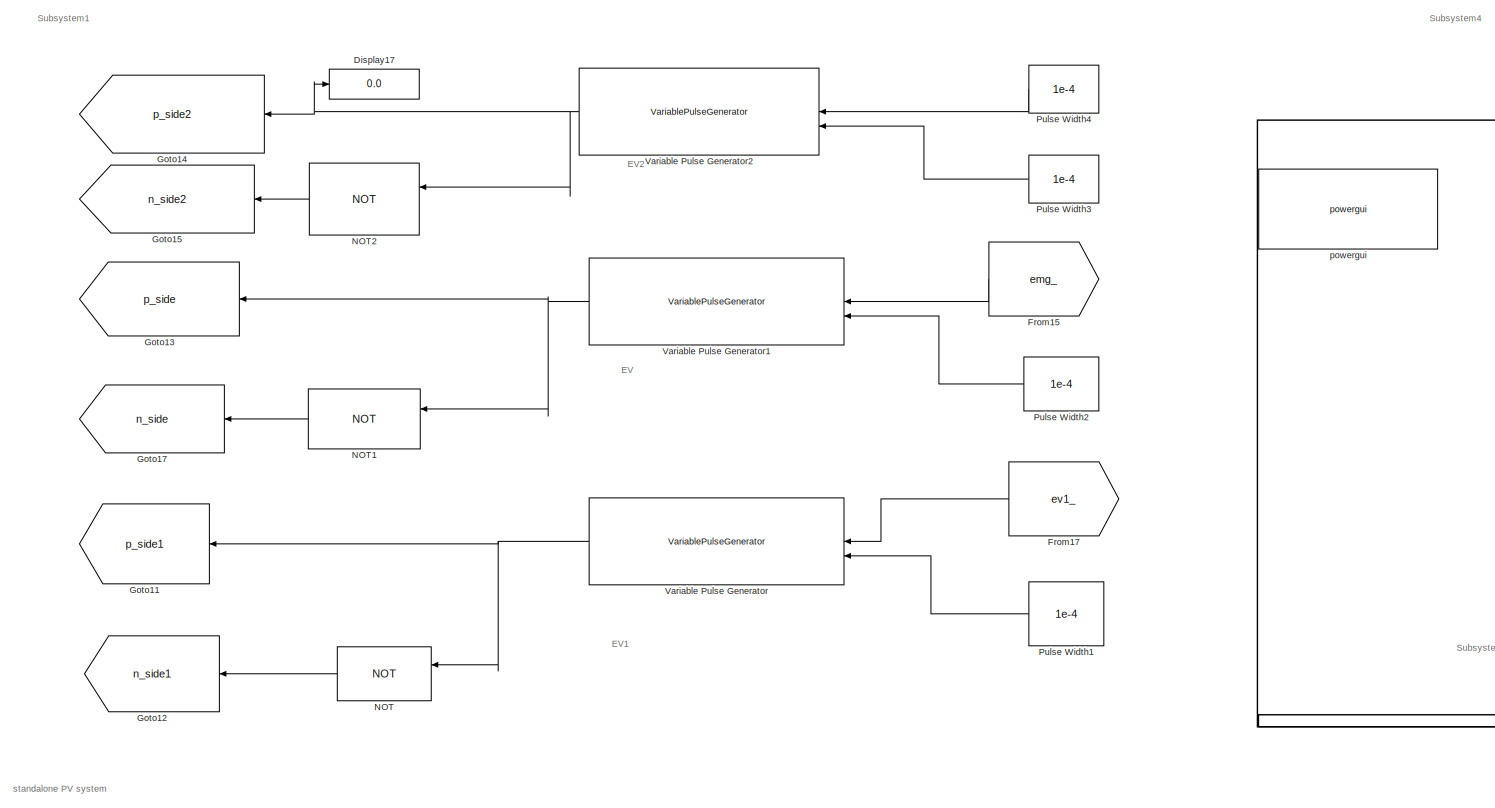
[diagram: root canvas - part 1/11, top left region]
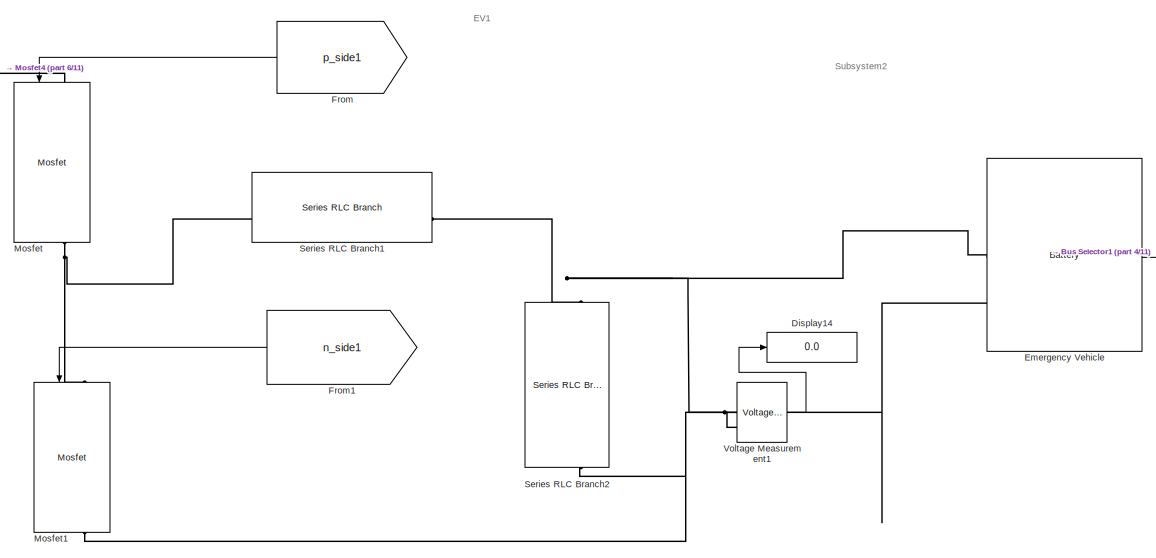
[diagram: root canvas - part 2/11, top center region]
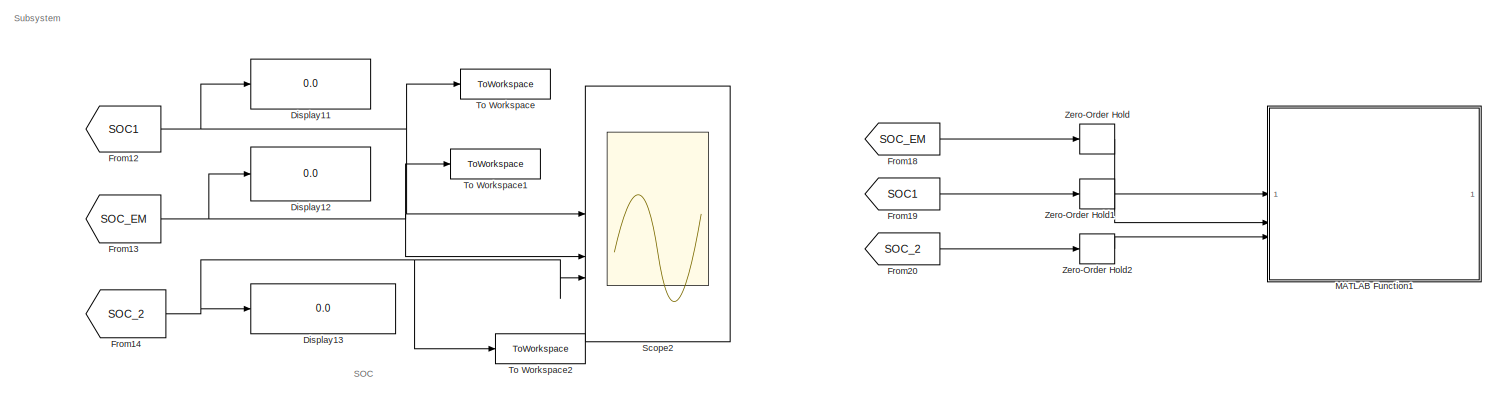
[diagram: root canvas - part 3/11, top right region]
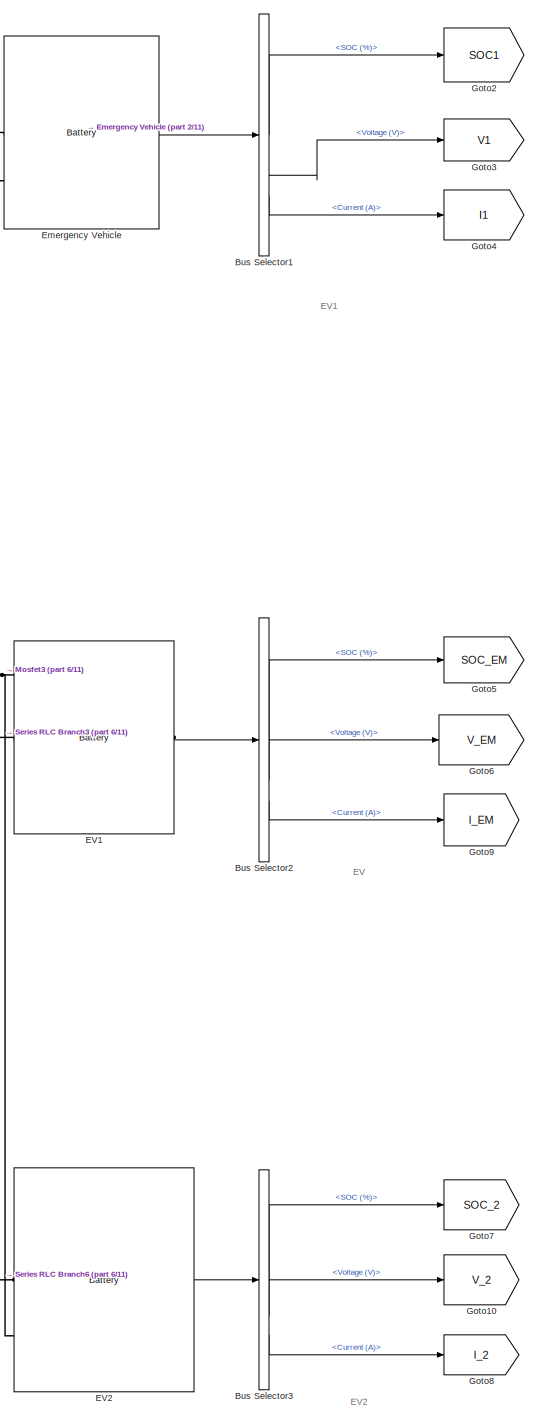
[diagram: root canvas - part 4/11, central region]
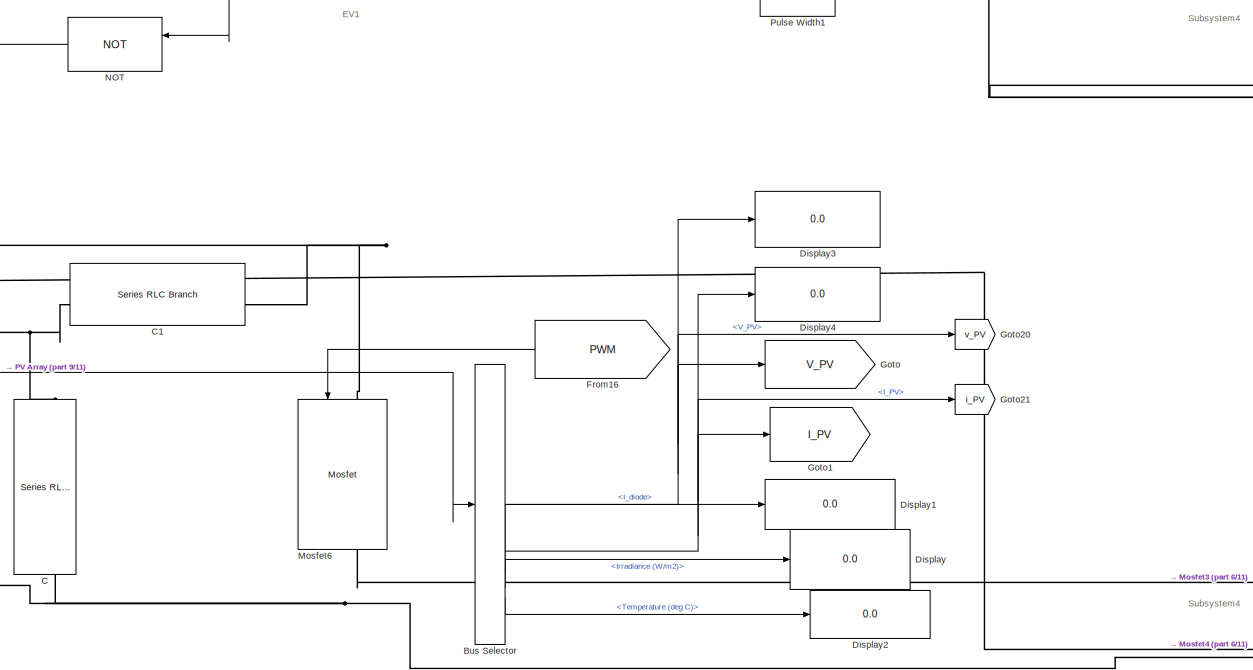
[diagram: root canvas - part 5/11, middle left region]
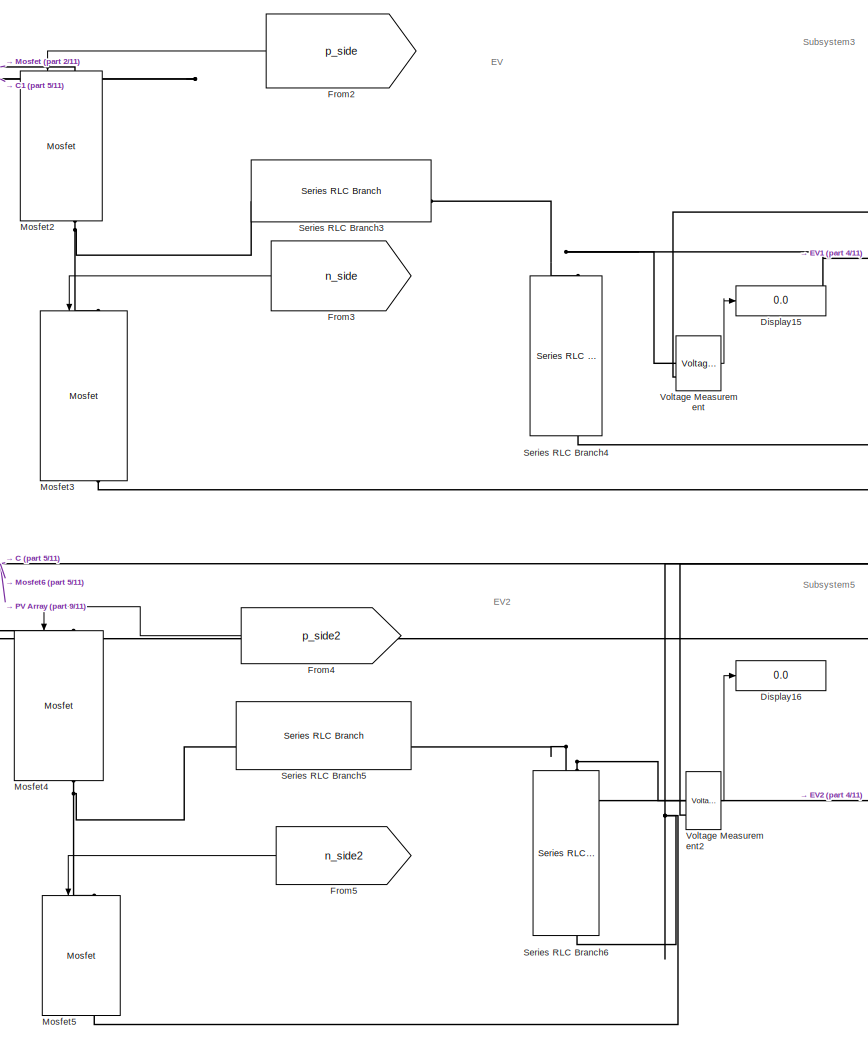
[diagram: root canvas - part 6/11, central region]
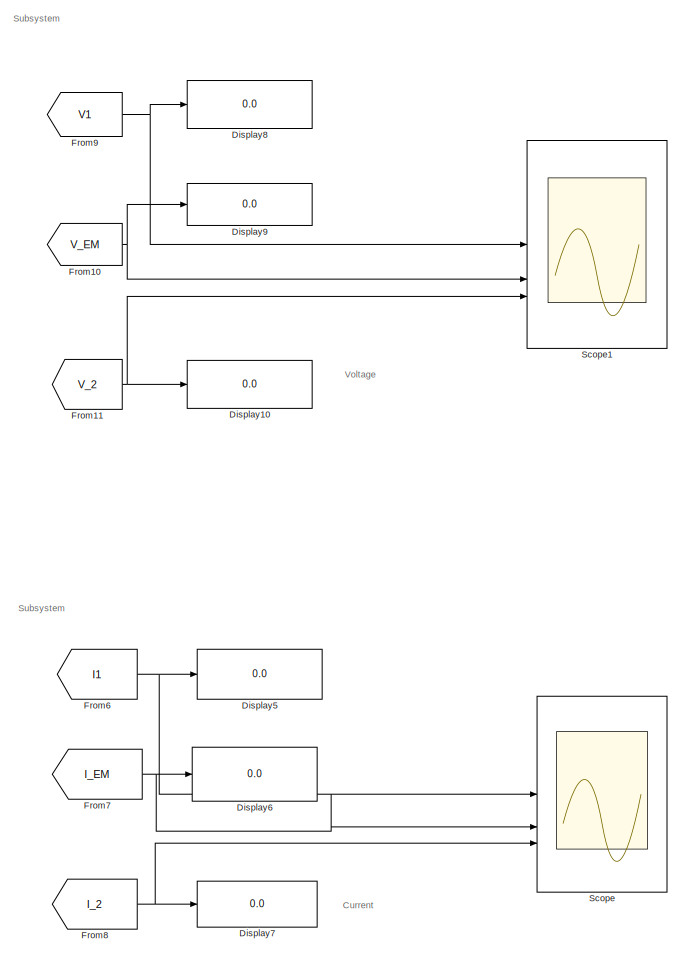
[diagram: root canvas - part 7/11, middle right region]
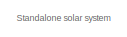
[diagram: root canvas - part 8/11, middle left region]
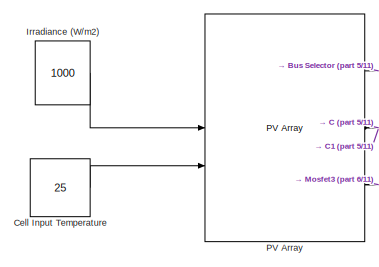
[diagram: root canvas - part 9/11, middle left region]
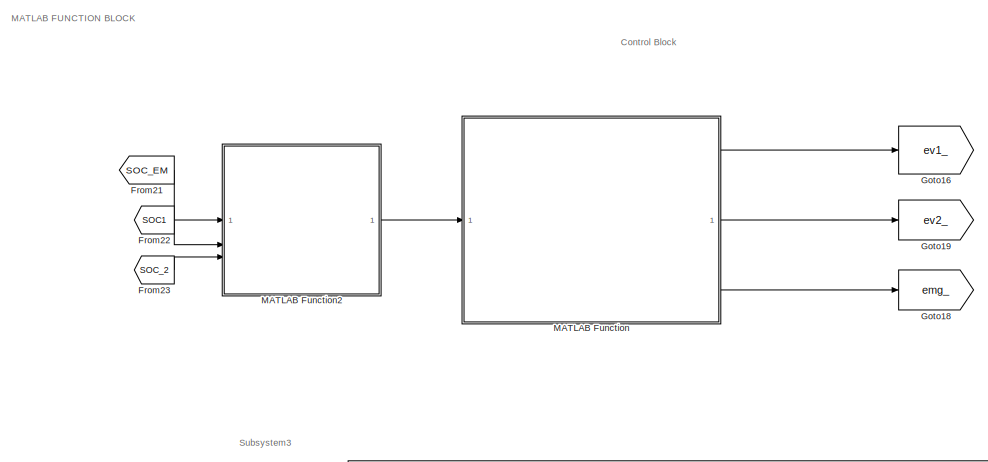
[diagram: root canvas - part 10/11, bottom left region]
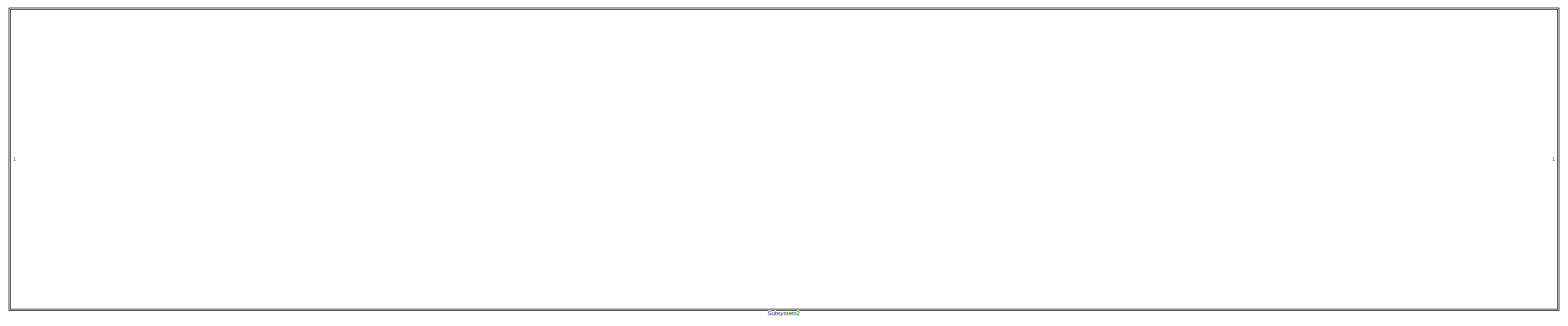
[diagram: root canvas - part 11/11, bottom center region]
MODEL slx_cc8a44b88fba
KIND model
CONFIG AbsTol = auto
CONFIG EnableMultiTasking = off
CONFIG FixedStep = auto
CONFIG MaxStep = auto
CONFIG MinStep = auto
CONFIG RelTol = 1e-3
CONFIG SampleTimeConstraint = Unconstrained
CONFIG SolverName = VariableStepAuto
CONFIG StartTime = 0.0
CONFIG StopTime = 5
BLOCK [BusSelector] Bus Selector
  OutputSignals = V_PV,I_PV,I_diode,Irradiance (W/m2),Temperature (deg C)
BLOCK [BusSelector] Bus Selector1
  OutputSignals = SOC (%),Voltage (V),Current (A)
BLOCK [BusSelector] Bus Selector2
  OutputSignals = SOC (%),Voltage (V),Current (A)
BLOCK [BusSelector] Bus Selector3
  OutputSignals = SOC (%),Voltage (V),Current (A)
BLOCK [Reference] C  REF=spsSeriesRLCBranchLib/Series RLC Branch
  LibrarySourceBlock = sps_lib/Passives/Series RLC Branch
  NameLocation = left
  SourceBlock = spsSeriesRLCBranchLib/Series RLC Branch
  SourceType = Series RLC Branch
BLOCK [Reference] C1  REF=spsSeriesRLCBranchLib/Series RLC Branch
  LibrarySourceBlock = sps_lib/Passives/Series RLC Branch
  NameLocation = top
  SourceBlock = spsSeriesRLCBranchLib/Series RLC Branch
  SourceType = Series RLC Branch
BLOCK [Constant] Cell Input Temperature
  Value = 25
BLOCK [Display] Display
  Decimation = 1
BLOCK [Display] Display1
  Decimation = 1
BLOCK [Display] Display10
  Decimation = 1
BLOCK [Display] Display11
  Decimation = 1
BLOCK [Display] Display12
  Decimation = 1
BLOCK [Display] Display13
  Decimation = 1
BLOCK [Display] Display14
  Decimation = 1
BLOCK [Display] Display15
  Decimation = 1
BLOCK [Display] Display16
  Decimation = 1
BLOCK [Display] Display17
  Decimation = 1
BLOCK [Display] Display2
  Decimation = 1
BLOCK [Display] Display3
  Decimation = 1
BLOCK [Display] Display4
  Decimation = 1
BLOCK [Display] Display5
  Decimation = 1
BLOCK [Display] Display6
  Decimation = 1
BLOCK [Display] Display7
  Decimation = 1
BLOCK [Display] Display8
  Decimation = 1
BLOCK [Display] Display9
  Decimation = 1
BLOCK [Reference] EV1  REF=spsBatteryLib/Battery
  LibrarySourceBlock = sps_lib/Sources/Battery
  NameLocation = top
  SourceBlock = spsBatteryLib/Battery
  SourceType = Battery
BLOCK [Reference] EV2  REF=spsBatteryLib/Battery
  LibrarySourceBlock = sps_lib/Sources/Battery
  SourceBlock = spsBatteryLib/Battery
  SourceType = Battery
BLOCK [Reference] Emergency Vehicle  REF=spsBatteryLib/Battery
  LibrarySourceBlock = sps_lib/Sources/Battery
  NameLocation = top
  SourceBlock = spsBatteryLib/Battery
  SourceType = Battery
BLOCK [From] From
  GotoTag = p_side1
  IconDisplay = Signal name
  NameLocation = top
  TagVisibility = global
BLOCK [From] From1
  GotoTag = n_side1
  IconDisplay = Signal name
  NameLocation = top
  TagVisibility = global
BLOCK [From] From10
  GotoTag = V_EM
  TagVisibility = global
BLOCK [From] From11
  GotoTag = V_2
  TagVisibility = global
BLOCK [From] From12
  GotoTag = SOC1
  TagVisibility = global
BLOCK [From] From13
  GotoTag = SOC_EM
  TagVisibility = global
BLOCK [From] From14
  GotoTag = SOC_2
  TagVisibility = global
BLOCK [From] From15
  GotoTag = emg_
  IconDisplay = Signal name
  NameLocation = top
  TagVisibility = global
BLOCK [From] From16
  GotoTag = PWM
  IconDisplay = Signal name
  NameLocation = top
  TagVisibility = global
BLOCK [From] From17
  GotoTag = ev1_
  IconDisplay = Signal name
  NameLocation = top
  TagVisibility = global
BLOCK [From] From18
  GotoTag = SOC_EM
  TagVisibility = global
BLOCK [From] From19
  GotoTag = SOC1
  TagVisibility = global
BLOCK [From] From2
  GotoTag = p_side
  IconDisplay = Signal name
  NameLocation = top
  TagVisibility = global
BLOCK [From] From20
  GotoTag = SOC_2
  TagVisibility = global
BLOCK [From] From21
  GotoTag = SOC_EM
  TagVisibility = global
BLOCK [From] From22
  GotoTag = SOC1
  TagVisibility = global
BLOCK [From] From23
  GotoTag = SOC_2
  TagVisibility = global
BLOCK [From] From3
  GotoTag = n_side
  IconDisplay = Signal name
  NameLocation = top
  TagVisibility = global
BLOCK [From] From4
  GotoTag = p_side2
  IconDisplay = Signal name
  NameLocation = top
  TagVisibility = global
BLOCK [From] From5
  GotoTag = n_side2
  IconDisplay = Signal name
  NameLocation = top
  TagVisibility = global
BLOCK [From] From6
  GotoTag = I1
  TagVisibility = global
BLOCK [From] From7
  GotoTag = I_EM
  TagVisibility = global
BLOCK [From] From8
  GotoTag = I_2
  TagVisibility = global
BLOCK [From] From9
  GotoTag = V1
  TagVisibility = global
BLOCK [Goto] Goto
  GotoTag = V_PV
  TagVisibility = global
BLOCK [Goto] Goto1
  GotoTag = I_PV
  TagVisibility = global
BLOCK [Goto] Goto10
  GotoTag = V_2
  TagVisibility = global
BLOCK [Goto] Goto11
  GotoTag = p_side1
  IconDisplay = Signal name
  NameLocation = top
  TagVisibility = global
BLOCK [Goto] Goto12
  GotoTag = n_side1
  IconDisplay = Signal name
  NameLocation = top
  TagVisibility = global
BLOCK [Goto] Goto13
  GotoTag = p_side
  NameLocation = top
  TagVisibility = global
BLOCK [Goto] Goto14
  GotoTag = p_side2
  NameLocation = top
  TagVisibility = global
BLOCK [Goto] Goto15
  GotoTag = n_side2
  NameLocation = top
  TagVisibility = global
BLOCK [Goto] Goto16
  GotoTag = ev1_
  TagVisibility = global
BLOCK [Goto] Goto17
  GotoTag = n_side
  NameLocation = top
  TagVisibility = global
BLOCK [Goto] Goto18
  GotoTag = emg_
  TagVisibility = global
BLOCK [Goto] Goto19
  GotoTag = ev2_
  TagVisibility = global
BLOCK [Goto] Goto2
  GotoTag = SOC1
  TagVisibility = global
BLOCK [Goto] Goto20
  GotoTag = v_PV
  TagVisibility = global
BLOCK [Goto] Goto21
  GotoTag = i_PV
  TagVisibility = global
BLOCK [Goto] Goto3
  GotoTag = V1
  TagVisibility = global
BLOCK [Goto] Goto4
  GotoTag = I1
  TagVisibility = global
BLOCK [Goto] Goto5
  GotoTag = SOC_EM
  TagVisibility = global
BLOCK [Goto] Goto6
  GotoTag = V_EM
  TagVisibility = global
BLOCK [Goto] Goto7
  GotoTag = SOC_2
  TagVisibility = global
BLOCK [Goto] Goto8
  GotoTag = I_2
  TagVisibility = global
BLOCK [Goto] Goto9
  GotoTag = I_EM
  TagVisibility = global
BLOCK [Constant] Irradiance (W//m2)
  Value = 1000
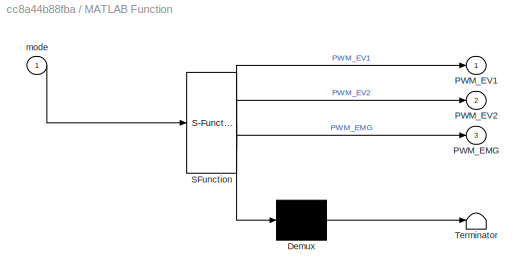
BLOCK [SubSystem] MATLAB Function
  ErrorFcn = Stateflow.Translate.translate
  PermitHierarchicalResolution = ExplicitOnly
  SFBlockType = MATLAB Function
  TreatAsAtomicUnit = on
BLOCK [Demux] MATLAB Function/ Demux 
  Outputs = 1
BLOCK [S-Function] MATLAB Function/ SFunction 
  EnableBusSupport = off
  FunctionName = sf_sfun
  PortCounts = [1 4]
  SFcnIsStateOwnerBlock = off
  SFunctionDeploymentMode = off
  Tag = Stateflow S-Function 1
BLOCK [Terminator] MATLAB Function/ Terminator 
BLOCK [Outport] MATLAB Function/PWM_EMG
  Port = 3
BLOCK [Outport] MATLAB Function/PWM_EV1
BLOCK [Outport] MATLAB Function/PWM_EV2
  Port = 2
BLOCK [Inport] MATLAB Function/mode
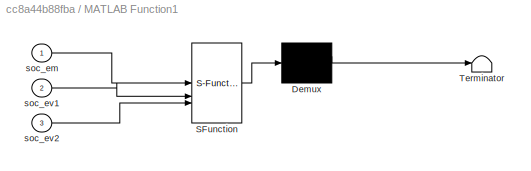
BLOCK [SubSystem] MATLAB Function1
  ErrorFcn = Stateflow.Translate.translate
  PermitHierarchicalResolution = ExplicitOnly
  SFBlockType = MATLAB Function
  TreatAsAtomicUnit = on
BLOCK [Demux] MATLAB Function1/ Demux 
  Outputs = 1
BLOCK [S-Function] MATLAB Function1/ SFunction 
  EnableBusSupport = off
  FunctionName = sf_sfun
  PortCounts = [3 1]
  SFcnIsStateOwnerBlock = off
  SFunctionDeploymentMode = off
  Tag = Stateflow S-Function 3
BLOCK [Terminator] MATLAB Function1/ Terminator 
BLOCK [Inport] MATLAB Function1/soc_em
BLOCK [Inport] MATLAB Function1/soc_ev1
  Port = 2
BLOCK [Inport] MATLAB Function1/soc_ev2
  Port = 3
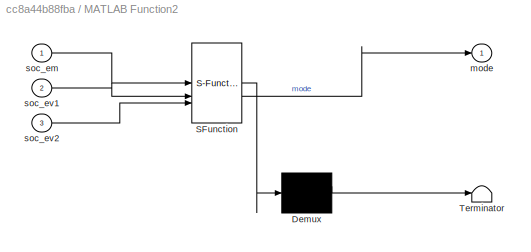
BLOCK [SubSystem] MATLAB Function2
  ErrorFcn = Stateflow.Translate.translate
  PermitHierarchicalResolution = ExplicitOnly
  SFBlockType = MATLAB Function
  TreatAsAtomicUnit = on
BLOCK [Demux] MATLAB Function2/ Demux 
  Outputs = 1
BLOCK [S-Function] MATLAB Function2/ SFunction 
  EnableBusSupport = off
  FunctionName = sf_sfun
  PortCounts = [3 2]
  SFcnIsStateOwnerBlock = off
  SFunctionDeploymentMode = off
  Tag = Stateflow S-Function 4
BLOCK [Terminator] MATLAB Function2/ Terminator 
BLOCK [Outport] MATLAB Function2/mode
BLOCK [Inport] MATLAB Function2/soc_em
BLOCK [Inport] MATLAB Function2/soc_ev1
  Port = 2
BLOCK [Inport] MATLAB Function2/soc_ev2
  Port = 3
BLOCK [Reference] Mosfet  REF=spsMosfetLib/Mosfet
  LibrarySourceBlock = sps_lib/Power Electronics/Mosfet
  NameLocation = left
  SourceBlock = spsMosfetLib/Mosfet
  SourceType = Mosfet
BLOCK [Reference] Mosfet1  REF=spsMosfetLib/Mosfet
  LibrarySourceBlock = sps_lib/Power Electronics/Mosfet
  NameLocation = left
  SourceBlock = spsMosfetLib/Mosfet
  SourceType = Mosfet
BLOCK [Reference] Mosfet2  REF=spsMosfetLib/Mosfet
  LibrarySourceBlock = sps_lib/Power Electronics/Mosfet
  NameLocation = left
  SourceBlock = spsMosfetLib/Mosfet
  SourceType = Mosfet
BLOCK [Reference] Mosfet3  REF=spsMosfetLib/Mosfet
  LibrarySourceBlock = sps_lib/Power Electronics/Mosfet
  NameLocation = left
  SourceBlock = spsMosfetLib/Mosfet
  SourceType = Mosfet
BLOCK [Reference] Mosfet4  REF=spsMosfetLib/Mosfet
  LibrarySourceBlock = sps_lib/Power Electronics/Mosfet
  NameLocation = left
  SourceBlock = spsMosfetLib/Mosfet
  SourceType = Mosfet
BLOCK [Reference] Mosfet5  REF=spsMosfetLib/Mosfet
  LibrarySourceBlock = sps_lib/Power Electronics/Mosfet
  NameLocation = left
  SourceBlock = spsMosfetLib/Mosfet
  SourceType = Mosfet
BLOCK [Reference] Mosfet6  REF=spsMosfetLib/Mosfet
  LibrarySourceBlock = sps_lib/Power Electronics/Mosfet
  NameLocation = left
  SourceBlock = spsMosfetLib/Mosfet
  SourceType = Mosfet
BLOCK [Logic] NOT
  AllPortsSameDT = off
  IconShape = distinctive
  NameLocation = top
  Operator = NOT
  OutDataTypeStr = boolean
BLOCK [Logic] NOT1
  AllPortsSameDT = off
  IconShape = distinctive
  NameLocation = top
  Operator = NOT
  OutDataTypeStr = boolean
BLOCK [Logic] NOT2
  AllPortsSameDT = off
  IconShape = distinctive
  NameLocation = top
  Operator = NOT
  OutDataTypeStr = boolean
BLOCK [Reference] PV  Array  REF=spsPVArrayLib/PV Array
  LibrarySourceBlock = sps_lib/Sources/PV Array
  SourceBlock = spsPVArrayLib/PV Array
  SourceType = PV array
BLOCK [Constant] Pulse Width1
  NameLocation = top
  Value = 1e-4
BLOCK [Constant] Pulse Width2
  NameLocation = top
  Value = 1e-4
BLOCK [Constant] Pulse Width3
  NameLocation = top
  Value = 1e-4
BLOCK [Constant] Pulse Width4
  NameLocation = top
  Value = 1e-4
BLOCK [Scope] Scope
  ActiveDisplayYMaximum = 55.444981382819826
  ActiveDisplayYMinimum = -6.4724154503791311
  Floating = off
  GraphicalSettings = {"AxesScalingProperties":{"AlignXAxis":"Center","AlignYAxis":"Center","AutoScaleXAxisLimits":false,"AxesScaling":"Manual","AxesScalingNumUpdates":10,"ExpandOnly":true,"ScaleAxesLimitsAtStop":false,"XAxisDataRange":100,"YAxisDataRange":80},"DisplayProperties":{"ColorOrder":["auto","auto","auto","auto","auto","auto","auto","auto","auto","auto","auto","auto","auto","auto","auto","auto","auto","auto",...<+2902ch>
  LayoutDimensionsString = [3,1]
  MultipleDisplayCache = [{"MaxYLimMag":5.0436506768116729,"MaxYLimReal":55.444981382819826,"MinYLimMag":0,"MinYLimReal":-6.4724154503791311,"PlotAsMagnitudePhase":false,"ShowGrid":true,"ShowLegend":true,"Title":"%<SignalLabel>","YLabel":""},{"MaxYLimMag":34.685331645379776,"MaxYLimReal":3.8576057857501582,"MinYLimMag":0,"MinYLimReal":-34.685331645379776,"PlotAsMagnitudePhase":false,"ShowGrid":true,"ShowLegend":true,"Titl...<+249ch>
  NumInputPorts = 3
  ScopeFrameLocation = window
  ShowLegend = on
  WasSavedAsWebScope = on
  WindowPosition = [0.000000,36.000000,1920.000000,1009.000000,]
BLOCK [Scope] Scope1
  ActiveDisplayYMaximum = 302.91358092238158
  ActiveDisplayYMinimum = -33.657064546931281
  DataLoggingVariableName = ScopeData1
  Floating = off
  GraphicalSettings = {"Style":{"BackgroundColor":[0.12941176470588237,0.12941176470588237,0.12941176470588237],"AxesColor":[0.07058823529411765,0.07058823529411765,0.07058823529411765],"LabelsColor":[0.8509803921568627,0.8509803921568627,0.8509803921568627],"PreserveColors":false,"Visible":[true,true,true],"LineStyle":["-","-","-"],"LineWidth":[1.5,1.5,1.5],"BarWidth":[0.9,0.9,0.9],"LineColor":["auto","auto","auto"],"...<+2883ch>
  LayoutDimensionsString = [3,1]
  MultipleDisplayCache = [{"MaxYLimMag":302.91358092238158,"MaxYLimReal":302.91358092238158,"MinYLimMag":0,"MinYLimReal":-33.657064546931281,"PlotAsMagnitudePhase":false,"ShowGrid":true,"ShowLegend":true,"Title":"%<SignalLabel>","YLabel":""},{"MaxYLimMag":301.61956123975261,"MaxYLimReal":301.61956123975261,"MinYLimMag":0,"MinYLimReal":-33.513284582194729,"PlotAsMagnitudePhase":false,"ShowGrid":true,"ShowLegend":true,"Titl...<+247ch>
  NumInputPorts = 3
  ScopeFrameLocation = window
  ShowLegend = on
  WasSavedAsWebScope = on
  WindowPosition = [0.000000,36.000000,1920.000000,1009.000000,]
BLOCK [Scope] Scope2
  ActiveDisplayYMaximum = 51.68343264048265
  ActiveDisplayYMinimum = 51.5865917372177
  DataLoggingVariableName = ScopeData2
  Floating = off
  GraphicalSettings = {"AxesScalingProperties":{"AlignXAxis":"Center","AlignYAxis":"Center","AutoScaleXAxisLimits":false,"AxesScaling":"Manual","AxesScalingNumUpdates":10,"ExpandOnly":true,"ScaleAxesLimitsAtStop":false,"XAxisDataRange":100,"YAxisDataRange":80},"DisplayProperties":{"ColorOrder":["auto","auto","auto","auto","auto","auto","auto","auto","auto","auto","auto","auto","auto","auto","auto","auto","auto","auto",...<+2942ch>
  LayoutDimensionsString = [3,1]
  MultipleDisplayCache = [{"MaxYLimMag":51.644192502302651,"MaxYLimReal":51.68343264048265,"MinYLimMag":51.643273281982829,"MinYLimReal":51.5865917372177,"PlotAsMagnitudePhase":false,"ShowGrid":true,"ShowLegend":true,"Title":"%<SignalLabel>","YLabel":""},{"MaxYLimMag":32.333001570825431,"MaxYLimReal":32.333001570825431,"MinYLimMag":32.298267394759208,"MinYLimReal":32.298267394759208,"PlotAsMagnitudePhase":false,"ShowGrid"...<+293ch>
  NumInputPorts = 3
  ScopeFrameLocation = window
  ShowLegend = on
  WasSavedAsWebScope = on
  WindowPosition = [0.000000,36.000000,1920.000000,1009.000000,]
BLOCK [Reference] Series RLC Branch1  REF=spsSeriesRLCBranchLib/Series RLC Branch
  LibrarySourceBlock = sps_lib/Passives/Series RLC Branch
  SourceBlock = spsSeriesRLCBranchLib/Series RLC Branch
  SourceType = Series RLC Branch
BLOCK [Reference] Series RLC Branch2  REF=spsSeriesRLCBranchLib/Series RLC Branch
  LibrarySourceBlock = sps_lib/Passives/Series RLC Branch
  NameLocation = left
  SourceBlock = spsSeriesRLCBranchLib/Series RLC Branch
  SourceType = Series RLC Branch
BLOCK [Reference] Series RLC Branch3  REF=spsSeriesRLCBranchLib/Series RLC Branch
  LibrarySourceBlock = sps_lib/Passives/Series RLC Branch
  SourceBlock = spsSeriesRLCBranchLib/Series RLC Branch
  SourceType = Series RLC Branch
BLOCK [Reference] Series RLC Branch4  REF=spsSeriesRLCBranchLib/Series RLC Branch
  LibrarySourceBlock = sps_lib/Passives/Series RLC Branch
  NameLocation = left
  SourceBlock = spsSeriesRLCBranchLib/Series RLC Branch
  SourceType = Series RLC Branch
BLOCK [Reference] Series RLC Branch5  REF=spsSeriesRLCBranchLib/Series RLC Branch
  LibrarySourceBlock = sps_lib/Passives/Series RLC Branch
  SourceBlock = spsSeriesRLCBranchLib/Series RLC Branch
  SourceType = Series RLC Branch
BLOCK [Reference] Series RLC Branch6  REF=spsSeriesRLCBranchLib/Series RLC Branch
  LibrarySourceBlock = sps_lib/Passives/Series RLC Branch
  NameLocation = left
  SourceBlock = spsSeriesRLCBranchLib/Series RLC Branch
  SourceType = Series RLC Branch
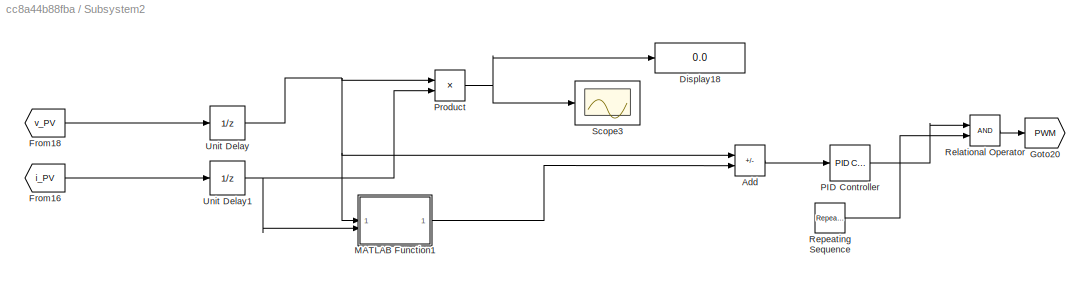
BLOCK [SubSystem] Subsystem2
BLOCK [Sum] Subsystem2/Add
  IconShape = rectangular
  Inputs = +-
BLOCK [Display] Subsystem2/Display18
  Decimation = 1
BLOCK [From] Subsystem2/From16
  GotoTag = i_PV
  TagVisibility = global
BLOCK [From] Subsystem2/From18
  GotoTag = v_PV
  TagVisibility = global
BLOCK [Goto] Subsystem2/Goto20
  GotoTag = PWM
  TagVisibility = global
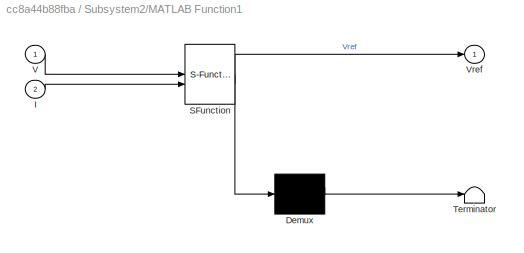
BLOCK [SubSystem] Subsystem2/MATLAB Function1
  ErrorFcn = Stateflow.Translate.translate
  PermitHierarchicalResolution = ExplicitOnly
  SFBlockType = MATLAB Function
  TreatAsAtomicUnit = on
BLOCK [Demux] Subsystem2/MATLAB Function1/ Demux 
  Outputs = 1
BLOCK [S-Function] Subsystem2/MATLAB Function1/ SFunction 
  EnableBusSupport = off
  FunctionName = sf_sfun
  PortCounts = [2 2]
  SFcnIsStateOwnerBlock = off
  SFunctionDeploymentMode = off
  Tag = Stateflow S-Function 2
BLOCK [Terminator] Subsystem2/MATLAB Function1/ Terminator 
BLOCK [Inport] Subsystem2/MATLAB Function1/I
  Port = 2
BLOCK [Inport] Subsystem2/MATLAB Function1/V
BLOCK [Outport] Subsystem2/MATLAB Function1/Vref
BLOCK [Reference] Subsystem2/PID Controller  REF=slpidlib/PID Controller
  LibrarySourceBlock = simulink/Continuous/PID Controller
  SourceBlock = slpidlib/PID Controller
  SourceType = PID 1dof
BLOCK [Product] Subsystem2/Product
BLOCK [RelationalOperator] Subsystem2/Relational Operator
  InputSameDT = off
  OutDataTypeStr = boolean
  RndMeth = Simplest
BLOCK [Reference] Subsystem2/Repeating Sequence  REF=simulink/Sources/Repeating
Sequence
  SourceBlock = simulink/Sources/Repeating\nSequence
  SourceType = Repeating table
BLOCK [Scope] Subsystem2/Scope3
  DataLoggingVariableName = ScopeData3
  Floating = off
  GraphicalSettings = {"GraphicalSettings":{"LegacySettings":true,"Style":{"Style":{"PlotType":"Auto"}}}}
  NumInputPorts = 1
  WasSavedAsWebScope = on
BLOCK [UnitDelay] Subsystem2/Unit Delay
  HasFrameUpgradeWarning = on
  SampleTime = -1
BLOCK [UnitDelay] Subsystem2/Unit Delay1
  HasFrameUpgradeWarning = on
  SampleTime = -1
BLOCK [ToWorkspace] To Workspace
  FixptAsFi = on
  MaxDataPoints = inf
  SampleTime = 1
  Save2DSignal = 2-D array (concatenate along first dimension)
  VariableName = soc1
BLOCK [ToWorkspace] To Workspace1
  FixptAsFi = on
  MaxDataPoints = inf
  SampleTime = -1
  Save2DSignal = 2-D array (concatenate along first dimension)
  VariableName = soc_em
BLOCK [ToWorkspace] To Workspace2
  FixptAsFi = on
  MaxDataPoints = inf
  SampleTime = -1
  Save2DSignal = 2-D array (concatenate along first dimension)
  VariableName = soc2
BLOCK [VariablePulseGenerator] Variable Pulse Generator
  AllowZeroPulseWidth = on
  NameLocation = top
  SampleTime = 0.1
BLOCK [VariablePulseGenerator] Variable Pulse Generator1
  AllowZeroPulseWidth = on
  NameLocation = top
  SampleTime = 0.1
BLOCK [VariablePulseGenerator] Variable Pulse Generator2
  AllowZeroPulseWidth = on
  NameLocation = top
  SampleTime = 0.1
BLOCK [Reference] Voltage Measurement  REF=spsVoltageMeasurementLib/Voltage Measurement
  LibrarySourceBlock = sps_lib/Sensors and Measurements/Voltage Measurement
  SourceBlock = spsVoltageMeasurementLib/Voltage Measurement
  SourceType = Voltage Measurement
  UserDataPersistent = on
BLOCK [Reference] Voltage Measurement1  REF=spsVoltageMeasurementLib/Voltage Measurement
  LibrarySourceBlock = sps_lib/Sensors and Measurements/Voltage Measurement
  SourceBlock = spsVoltageMeasurementLib/Voltage Measurement
  SourceType = Voltage Measurement
  UserDataPersistent = on
BLOCK [Reference] Voltage Measurement2  REF=spsVoltageMeasurementLib/Voltage Measurement
  LibrarySourceBlock = sps_lib/Sensors and Measurements/Voltage Measurement
  SourceBlock = spsVoltageMeasurementLib/Voltage Measurement
  SourceType = Voltage Measurement
  UserDataPersistent = on
BLOCK [ZeroOrderHold] Zero-Order Hold
BLOCK [ZeroOrderHold] Zero-Order Hold1
BLOCK [ZeroOrderHold] Zero-Order Hold2
BLOCK [Reference] powergui  REF=spspowerguiLib/powergui
  LibrarySourceBlock = sps_lib/powergui
  Priority = 1
  SourceBlock = spspowerguiLib/powergui
  SourceType = PSB option menu block
ANNOTATION (root): SOC
ANNOTATION (root): Control Block
ANNOTATION (root): Current
ANNOTATION (root): EV1
ANNOTATION (root): EV2
ANNOTATION (root): EV
ANNOTATION (root): Voltage
ANNOTATION (root): standalone PV system
ANNOTATION (root): MATLAB FUNCTION BLOCK
ANNOTATION (root): Standalone solar system
ANNOTATION (root): Subsystem
ANNOTATION (root): Subsystem1
ANNOTATION (root): Subsystem2
ANNOTATION (root): Subsystem3
ANNOTATION (root): Subsystem4
ANNOTATION (root): Subsystem5
LINE Bus Selector1:1 -> Goto2:1
LINE Bus Selector1:2 -> Goto3:1
LINE Bus Selector1:3 -> Goto4:1
LINE Bus Selector2:1 -> Goto5:1
LINE Bus Selector2:2 -> Goto6:1
LINE Bus Selector2:3 -> Goto9:1
LINE Bus Selector3:1 -> Goto7:1
LINE Bus Selector3:2 -> Goto10:1
LINE Bus Selector3:3 -> Goto8:1
NET Bus Selector:1 -> Display3:1, Goto20:1, Goto:1
NET Bus Selector:2 -> Display4:1, Goto1:1, Goto21:1
LINE Bus Selector:3 -> Display1:1
LINE Bus Selector:4 -> Display:1
LINE Bus Selector:5 -> Display2:1
LINE Cell Input Temperature:1 -> PV  Array:2
LINE EV1:1 -> Bus Selector2:1
LINE EV2:1 -> Bus Selector3:1
LINE Emergency Vehicle:1 -> Bus Selector1:1
NET From10:1 -> Display9:1, Scope1:2
NET From11:1 -> Display10:1, Scope1:3
NET From12:1 -> Display11:1, Scope2:1, To Workspace:1
NET From13:1 -> Display12:1, Scope2:2, To Workspace1:1
NET From14:1 -> Display13:1, Scope2:3, To Workspace2:1
LINE From15:1 -> Variable Pulse Generator1:1
LINE From16:1 -> Mosfet6:1
LINE From17:1 -> Variable Pulse Generator:1
LINE From18:1 -> Zero-Order Hold:1
LINE From19:1 -> Zero-Order Hold1:1
LINE From1:1 -> Mosfet1:1
LINE From20:1 -> Zero-Order Hold2:1
LINE From21:1 -> MATLAB Function2:1
LINE From22:1 -> MATLAB Function2:2
LINE From23:1 -> MATLAB Function2:3
LINE From2:1 -> Mosfet2:1
LINE From3:1 -> Mosfet3:1
LINE From4:1 -> Mosfet4:1
LINE From5:1 -> Mosfet5:1
NET From6:1 -> Display5:1, Scope:1
NET From7:1 -> Display6:1, Scope:2
NET From8:1 -> Display7:1, Scope:3
NET From9:1 -> Display8:1, Scope1:1
LINE From:1 -> Mosfet:1
LINE Irradiance (W//m2):1 -> PV  Array:1
LINE MATLAB Function2:1 -> MATLAB Function:1
LINE MATLAB Function:1 -> Goto16:1
LINE MATLAB Function:2 -> Goto19:1
LINE MATLAB Function:3 -> Goto18:1
LINE NOT1:1 -> Goto17:1
LINE NOT2:1 -> Goto15:1
LINE NOT:1 -> Goto12:1
LINE PV  Array:1 -> Bus Selector:1
LINE Pulse Width1:1 -> Variable Pulse Generator:2
LINE Pulse Width2:1 -> Variable Pulse Generator1:2
LINE Pulse Width3:1 -> Variable Pulse Generator2:2
LINE Pulse Width4:1 -> Variable Pulse Generator2:1
LINE Subsystem2/Add:1 -> Subsystem2/PID Controller:1
LINE Subsystem2/From16:1 -> Subsystem2/Unit Delay1:1
LINE Subsystem2/From18:1 -> Subsystem2/Unit Delay:1
LINE Subsystem2/MATLAB Function1:1 -> Subsystem2/Add:2
LINE Subsystem2/PID Controller:1 -> Subsystem2/Relational Operator:1
NET Subsystem2/Product:1 -> Subsystem2/Display18:1, Subsystem2/Scope3:1
LINE Subsystem2/Relational Operator:1 -> Subsystem2/Goto20:1
LINE Subsystem2/Repeating Sequence:1 -> Subsystem2/Relational Operator:2
NET Subsystem2/Unit Delay1:1 -> Subsystem2/MATLAB Function1:2, Subsystem2/Product:2
NET Subsystem2/Unit Delay:1 -> Subsystem2/Add:1, Subsystem2/MATLAB Function1:1, Subsystem2/Product:1
NET Variable Pulse Generator1:1 -> Goto13:1, NOT1:1
NET Variable Pulse Generator2:1 -> Display17:1, Goto14:1, NOT2:1
NET Variable Pulse Generator:1 -> Goto11:1, NOT:1
LINE Voltage Measurement1:1 -> Display14:1
LINE Voltage Measurement2:1 -> Display16:1
LINE Voltage Measurement:1 -> Display15:1
LINE Zero-Order Hold1:1 -> MATLAB Function1:2
LINE Zero-Order Hold2:1 -> MATLAB Function1:3
LINE Zero-Order Hold:1 -> MATLAB Function1:1
PNET net1: C1:LConn1 -- Mosfet2:LConn1 -- Mosfet4:LConn1 -- Mosfet6:LConn1 -- Mosfet:LConn1
PNET net2: C1:RConn1 -- C:LConn1 -- PV  Array:RConn1
PNET net3: C:RConn1 -- EV1:LConn2 -- EV2:LConn2 -- Mosfet3:RConn1 -- Mosfet5:RConn1 -- Mosfet6:RConn1 -- PV  Array:RConn2 -- Series RLC Branch4:RConn1 -- Series RLC Branch6:RConn1 -- Voltage Measurement2:LConn2 -- Voltage Measurement:LConn2
PNET net4: EV1:LConn1 -- Series RLC Branch3:RConn1 -- Series RLC Branch4:LConn1 -- Voltage Measurement:LConn1
PNET net5: EV2:LConn1 -- Series RLC Branch5:RConn1 -- Series RLC Branch6:LConn1 -- Voltage Measurement2:LConn1
PNET net6: Emergency Vehicle:LConn1 -- Series RLC Branch1:RConn1 -- Series RLC Branch2:LConn1 -- Voltage Measurement1:LConn1
PNET net7: Emergency Vehicle:LConn2 -- Mosfet1:RConn1 -- Series RLC Branch2:RConn1 -- Voltage Measurement1:LConn2
PNET net8: Mosfet1:LConn1 -- Mosfet:RConn1 -- Series RLC Branch1:LConn1
PNET net9: Mosfet2:RConn1 -- Mosfet3:LConn1 -- Series RLC Branch3:LConn1
PNET net10: Mosfet4:RConn1 -- Mosfet5:LConn1 -- Series RLC Branch5:LConn1
note: NET lines group one-source signal fan-out (src -> all destinations, sorted); 1:1 wires keep LINE; PNET lines group multi-terminal physical nets as a canonical sorted terminal list (undirected conserving connections); 2-terminal nets keep the pairwise PLINE form
CHART MATLAB Function states=1 transitions=1
  STATE_LABEL 'eML_blk_kernel()'
  STATE_LABEL 'SCRIPT:\nfunction [PWM_EV1, PWM_EV2, PWM_EMG] = control_function(mode)\n% mode: 1 - Normal charging\n%       2 - Slower charging for EV1/EV2, fast for EMG\n%       3 - Reverse charging from EV1/EV2 to EMG\n\n% Duty cycle values (use values between 0 and 1 for Variable Pulse Generator)\nPWM_fast   = 0.95;  % Fast charging (e.g., 95% duty for EMG)\nPWM_normal = 0.9;  % Normal charging\nPWM_slower = 0.85;  % ...<+649ch>'
CHART Subsystem2/MATLAB Function1 states=1 transitions=1
  STATE_LABEL 'eML_blk_kernel()'
  STATE_LABEL 'SCRIPT:\nfunction Vref = MPPT(V, I)\n\n% Limits for reference voltage\nVrefmax  = 450;   % maximum PV voltage\nVrefmin  = 0;     % minimum PV voltage\nVrefinit = 400;   % initial reference\ndeltaVref = 1;    % step size\n\n% Persistent variables\npersistent Volt Pold Vrefold\nif isempty(Volt)\n    Volt = 0;\n    Pold = 0;\n    Vrefold = Vrefinit;\nend\n\n% Current power\nP = V * I;\n\n% Differences\ndV = V - Volt;\ndP ...<+547ch>'
CHART MATLAB Function1 states=1 transitions=1
  STATE_LABEL 'eML_blk_kernel()'
  STATE_LABEL "SCRIPT:\nfunction json_export(soc_em, soc_ev1, soc_ev2)\n\n% Tell Simulink this function runs in MATLAB, not codegen\ncoder.extrinsic('export_soc');\n\nexport_soc(soc_em, soc_ev1, soc_ev2);\n\nend\n\n"
CHART MATLAB Function2 states=1 transitions=1
  STATE_LABEL 'eML_blk_kernel()'
  STATE_LABEL "SCRIPT:\nfunction mode = ml_mode_selector(soc_em, soc_ev1, soc_ev2)\n\n% --- IMPORTANT: initialize output with known type ---\nmode = 1;   % double scalar, default Normal mode\n\ncoder.extrinsic('py.predict_mode.predict_mode');\n\n% Call Python only for value update\npy_mode = py.predict_mode.predict_mode(soc_em, soc_ev1, soc_ev2);\n\n% Convert Python int → MATLAB double\nmode = double(py_mode);\n\nend\n\n"
CHART  states=0 transitions=0
CHART  states=0 transitions=0
CHART  states=0 transitions=0
CHART  states=0 transitions=0
